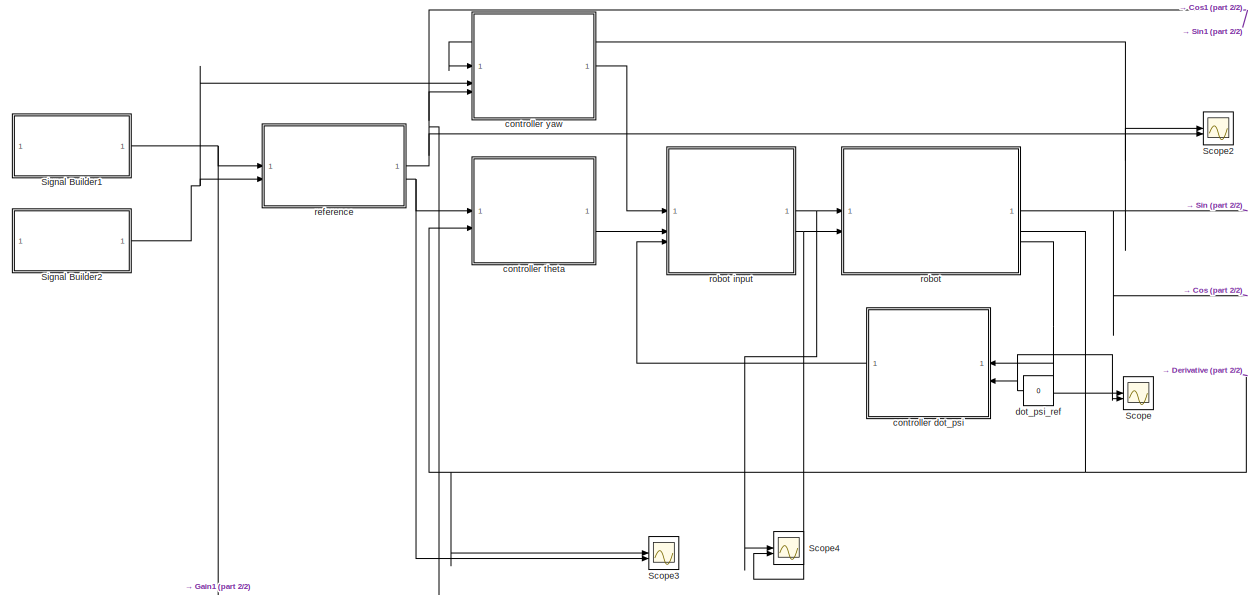
[diagram: root canvas - part 1/2, left side, full height]
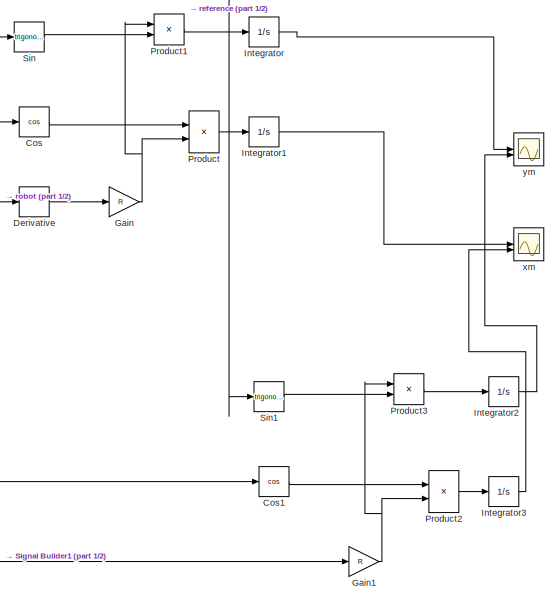
[diagram: root canvas - part 2/2, right side, full height]
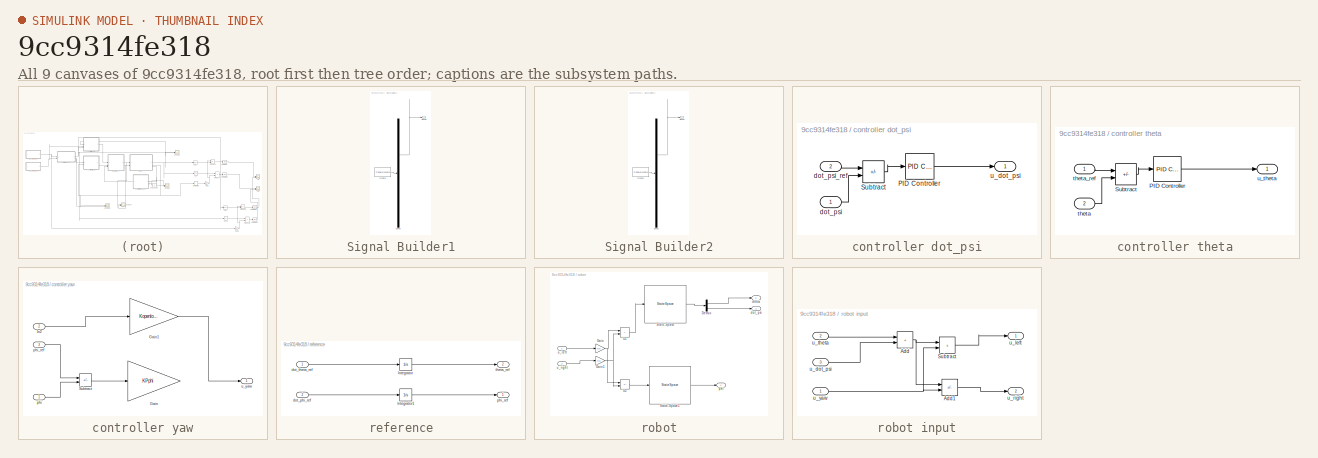
[diagram: thumbnail index - all 9 canvases of the model, root first then tree order]
MODEL slx_9cc9314fe318
KIND model
CONFIG AbsTol = auto
CONFIG EnableMultiTasking = on
CONFIG FixedStep = auto
CONFIG MaxStep = auto
CONFIG MinStep = auto
CONFIG RelTol = 1e-3
CONFIG SampleTimeConstraint = Unconstrained
CONFIG SolverName = VariableStepAuto
CONFIG StartTime = 0.0
CONFIG StopTime = 45
BLOCK [Trigonometry] Cos
  Operator = cos
BLOCK [Trigonometry] Cos1
  Operator = cos
BLOCK [Derivative] Derivative
BLOCK [Gain] Gain
  Gain = R
BLOCK [Gain] Gain1
  Gain = R
BLOCK [Integrator] Integrator
BLOCK [Integrator] Integrator1
BLOCK [Integrator] Integrator2
BLOCK [Integrator] Integrator3
BLOCK [Product] Product
BLOCK [Product] Product1
BLOCK [Product] Product2
BLOCK [Product] Product3
BLOCK [Scope] Scope
  Floating = off
  NumInputPorts = 2
  ScopeSpecificationString = Simulink.scopes.TimeScopeBlockCfg('CurrentConfiguration', extmgr.ConfigurationSet(extmgr.Configuration('Core','General UI',true),extmgr.Configuration('Core','Source UI',true),extmgr.Configuration('Sources','WiredSimulink',true,'DataLogging',true,'DataLoggingVariableName','psidot'),extmgr.Configuration('Visuals','Time Domain',true,'SerializedDisplays',{struct('MinYLimReal','-1.00000','MaxYLimReal',...<+1395ch>
BLOCK [Scope] Scope2
  Floating = off
  NumInputPorts = 2
  ScopeSpecificationString = Simulink.scopes.TimeScopeBlockCfg('CurrentConfiguration', extmgr.ConfigurationSet(extmgr.Configuration('Core','General UI',true),extmgr.Configuration('Core','Source UI',true),extmgr.Configuration('Sources','WiredSimulink',true,'DataLoggingVariableName','phidata','DataLogging',true),extmgr.Configuration('Visuals','Time Domain',true,'SerializedDisplays',{struct('MinYLimReal','-3.17996','MaxYLimReal'...<+1448ch>
BLOCK [Scope] Scope3
  Floating = off
  NumInputPorts = 2
  ScopeSpecificationString = Simulink.scopes.TimeScopeBlockCfg('CurrentConfiguration', extmgr.ConfigurationSet(extmgr.Configuration('Core','General UI',true),extmgr.Configuration('Core','Source UI',true),extmgr.Configuration('Sources','WiredSimulink',true,'DataLoggingVariableName','Theta','DataLogging',true),extmgr.Configuration('Visuals','Time Domain',true,'SerializedDisplays',{struct('MinYLimReal','-3.17996','MaxYLimReal','...<+1471ch>
BLOCK [Scope] Scope4
  Floating = off
  NumInputPorts = 2
  ScopeSpecificationString = Simulink.scopes.TimeScopeBlockCfg('CurrentConfiguration', extmgr.ConfigurationSet(extmgr.Configuration('Core','General UI',true),extmgr.Configuration('Core','Source UI',true),extmgr.Configuration('Sources','WiredSimulink',true,'DataLoggingVariableName','ScopeData1'),extmgr.Configuration('Visuals','Time Domain',true,'SerializedDisplays',{struct('MinYLimReal','-3.17996','MaxYLimReal','28.96853','YLa...<+1436ch>
BLOCK [SubSystem] Signal Builder1
  ClipboardFcn = sigbuilder_block('clipboard');
  CloseFcn = sigbuilder_block('close');
  ContinueFcn = sigbuilder_block('continue')
  CopyFcn = sigbuilder_block('copy');
  DeleteFcn = sigbuilder_block('delete');
  LoadFcn = sigbuilder_block('load');
  MaskHideContents = on
  ModelCloseFcn = sigbuilder_block('modelClose');
  NameChangeFcn = sigbuilder_block('namechange');
  OpenFcn = sigbuilder_block('open',[181.5 38.5 516 349.5 ]);
  PauseFcn = sigbuilder_block('pause')
  PreSaveFcn = sigbuilder_block('preSave');
  StartFcn = sigbuilder_block('start');
  StopFcn = sigbuilder_block('stop');
  Tag = STV Subsys
BLOCK [Demux] Signal Builder1/Demux
  DisplayOption = none
  Outputs = 1
  Tag = STV Demux
BLOCK [FromWorkspace] Signal Builder1/FromWs
  Tag = STV FromWs
  VariableName = tuvar
BLOCK [Outport] Signal Builder1/Signal 1
  Tag = STV Outport
BLOCK [SubSystem] Signal Builder2
  ClipboardFcn = sigbuilder_block('clipboard');
  CloseFcn = sigbuilder_block('close');
  ContinueFcn = sigbuilder_block('continue')
  CopyFcn = sigbuilder_block('copy');
  DeleteFcn = sigbuilder_block('delete');
  LoadFcn = sigbuilder_block('load');
  MaskHideContents = on
  ModelCloseFcn = sigbuilder_block('modelClose');
  NameChangeFcn = sigbuilder_block('namechange');
  OpenFcn = sigbuilder_block('open',[181.5 38.5 516 349.5 ]);
  PauseFcn = sigbuilder_block('pause')
  PreSaveFcn = sigbuilder_block('preSave');
  StartFcn = sigbuilder_block('start');
  StopFcn = sigbuilder_block('stop');
  Tag = STV Subsys
BLOCK [Demux] Signal Builder2/Demux
  DisplayOption = none
  Outputs = 1
  Tag = STV Demux
BLOCK [FromWorkspace] Signal Builder2/FromWs
  Tag = STV FromWs
  VariableName = tuvar
BLOCK [Outport] Signal Builder2/Signal 1
  Tag = STV Outport
BLOCK [Trigonometry] Sin
BLOCK [Trigonometry] Sin1
BLOCK [SubSystem] controller dot_psi
BLOCK [Reference] controller dot_psi/PID Controller  REF=slpidlib/PID Controller
  LibrarySourceBlock = simulink/Continuous/PID Controller
  SourceBlock = slpidlib/PID Controller
  SourceType = PID 1dof
BLOCK [Sum] controller dot_psi/Subtract
  IconShape = rectangular
  Inputs = +-
BLOCK [Inport] controller dot_psi/dot_psi 
BLOCK [Inport] controller dot_psi/dot_psi_ref
  Port = 2
BLOCK [Outport] controller dot_psi/u_dot_psi
BLOCK [SubSystem] controller theta
BLOCK [Reference] controller theta/PID Controller  REF=slpidlib/PID Controller
  LibrarySourceBlock = simulink/Continuous/PID Controller
  SourceBlock = slpidlib/PID Controller
  SourceType = PID 1dof
BLOCK [Sum] controller theta/Subtract
  IconShape = rectangular
  Inputs = +-
BLOCK [Inport] controller theta/theta 
  Port = 2
BLOCK [Inport] controller theta/theta_ref
BLOCK [Outport] controller theta/u_theta
BLOCK [SubSystem] controller yaw
BLOCK [Gain] controller yaw/Gain
  Gain = KPphi
BLOCK [Gain] controller yaw/Gain1
  Gain = Kopenloop
BLOCK [Inport] controller yaw/In2
  Port = 2
BLOCK [Sum] controller yaw/Subtract
  IconShape = rectangular
  Inputs = +-
BLOCK [Inport] controller yaw/phi
BLOCK [Inport] controller yaw/phi_ref
  Port = 3
BLOCK [Outport] controller yaw/u_yaw
BLOCK [Constant] dot_psi_ref
  Value = 0
  VectorParams1D = off
BLOCK [SubSystem] reference
BLOCK [Integrator] reference/Integrator
BLOCK [Integrator] reference/Integrator1
BLOCK [Inport] reference/dot_phi_ref 
  Port = 2
BLOCK [Inport] reference/dot_theta_ref 
BLOCK [Outport] reference/phi_ref
BLOCK [Outport] reference/theta_ref 
  Port = 2
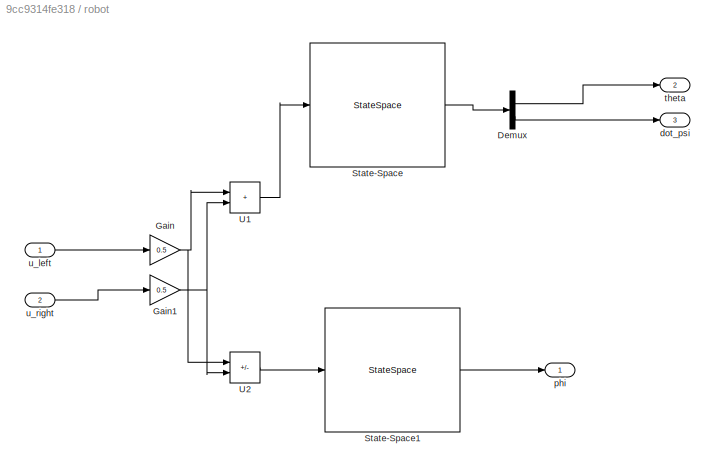
BLOCK [SubSystem] robot
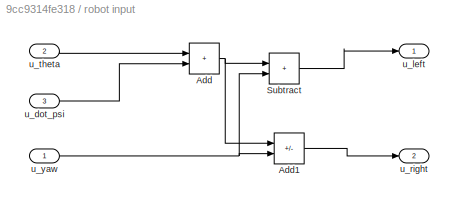
BLOCK [SubSystem] robot input
BLOCK [Sum] robot input/Add
  IconShape = rectangular
BLOCK [Sum] robot input/Add1
  IconShape = rectangular
  Inputs = +-
BLOCK [Sum] robot input/Subtract
  IconShape = rectangular
BLOCK [Inport] robot input/u_dot_psi
  Port = 3
BLOCK [Outport] robot input/u_left
BLOCK [Outport] robot input/u_right
  Port = 2
BLOCK [Inport] robot input/u_theta
  Port = 2
BLOCK [Inport] robot input/u_yaw
BLOCK [Demux] robot/Demux
  Outputs = 2
BLOCK [Gain] robot/Gain
  Gain = 0.5
BLOCK [Gain] robot/Gain1
  Gain = 0.5
BLOCK [StateSpace] robot/State-Space
  A = A1
  B = B1
  C = C1
  D = D1
  InitialCondition = 0
BLOCK [StateSpace] robot/State-Space1
  A = A2
  B = B2
  C = C2
  D = D2
  InitialCondition = 0
BLOCK [Sum] robot/U1
  IconShape = rectangular
BLOCK [Sum] robot/U2
  IconShape = rectangular
  Inputs = +-
BLOCK [Outport] robot/dot_psi
  Port = 3
BLOCK [Outport] robot/phi
BLOCK [Outport] robot/theta
  Port = 2
BLOCK [Inport] robot/u_left
BLOCK [Inport] robot/u_right
  Port = 2
BLOCK [Scope] xm
  Floating = off
  NumInputPorts = 2
  ScopeSpecificationString = Simulink.scopes.TimeScopeBlockCfg('CurrentConfiguration', extmgr.ConfigurationSet(extmgr.Configuration('Core','General UI',true),extmgr.Configuration('Core','Source UI',true),extmgr.Configuration('Sources','WiredSimulink',true,'DataLoggingVariableName','ScopeData6'),extmgr.Configuration('Visuals','Time Domain',true,'SerializedDisplays',{struct('MinYLimReal','-0.0485','MaxYLimReal','0.04463','YLabe...<+1424ch>
BLOCK [Scope] ym
  Floating = off
  NumInputPorts = 2
  ScopeSpecificationString = Simulink.scopes.TimeScopeBlockCfg('CurrentConfiguration', extmgr.ConfigurationSet(extmgr.Configuration('Core','General UI',true),extmgr.Configuration('Core','Source UI',true),extmgr.Configuration('Sources','WiredSimulink',true,'DataLoggingVariableName','ScopeData5'),extmgr.Configuration('Visuals','Time Domain',true,'SerializedDisplays',{struct('MinYLimReal','-0.06474','MaxYLimReal','0.00739','YLab...<+1427ch>
LINE Cos1:1 -> Product2:1
LINE Cos:1 -> Product:1
LINE Derivative:1 -> Gain:1
NET Gain1:1 -> Product2:2, Product3:1
NET Gain:1 -> Product1:1, Product:2
LINE Integrator1:1 -> xm:1
LINE Integrator2:1 -> ym:2
LINE Integrator3:1 -> xm:2
LINE Integrator:1 -> ym:1
LINE Product1:1 -> Integrator:1
LINE Product2:1 -> Integrator3:1
LINE Product3:1 -> Integrator2:1
LINE Product:1 -> Integrator1:1
LINE Signal Builder1/Demux:1 -> Signal Builder1/Signal 1:1
LINE Signal Builder1/FromWs:1 -> Signal Builder1/Demux:1
NET Signal Builder1:1 -> Gain1:1, reference:1
LINE Signal Builder2/Demux:1 -> Signal Builder2/Signal 1:1
LINE Signal Builder2/FromWs:1 -> Signal Builder2/Demux:1
NET Signal Builder2:1 -> controller yaw:2, reference:2
LINE Sin1:1 -> Product3:2
LINE Sin:1 -> Product1:2
LINE controller dot_psi/PID Controller:1 -> controller dot_psi/u_dot_psi:1
LINE controller dot_psi/Subtract:1 -> controller dot_psi/PID Controller:1
LINE controller dot_psi/dot_psi :1 -> controller dot_psi/Subtract:2
LINE controller dot_psi/dot_psi_ref:1 -> controller dot_psi/Subtract:1
LINE controller dot_psi:1 -> robot input:3
LINE controller theta/PID Controller:1 -> controller theta/u_theta:1
LINE controller theta/Subtract:1 -> controller theta/PID Controller:1
LINE controller theta/theta :1 -> controller theta/Subtract:2
LINE controller theta/theta_ref:1 -> controller theta/Subtract:1
LINE controller theta:1 -> robot input:2
LINE controller yaw/Gain1:1 -> controller yaw/u_yaw:1
LINE controller yaw/In2:1 -> controller yaw/Gain1:1
LINE controller yaw/Subtract:1 -> controller yaw/Gain:1
LINE controller yaw/phi:1 -> controller yaw/Subtract:2
LINE controller yaw/phi_ref:1 -> controller yaw/Subtract:1
LINE controller yaw:1 -> robot input:1
NET dot_psi_ref:1 -> Scope:2, controller dot_psi:2
LINE reference/Integrator1:1 -> reference/phi_ref:1
LINE reference/Integrator:1 -> reference/theta_ref :1
LINE reference/dot_phi_ref :1 -> reference/Integrator1:1
LINE reference/dot_theta_ref :1 -> reference/Integrator:1
NET reference:1 -> Cos1:1, Scope2:2, Sin1:1, controller yaw:3
NET reference:2 -> Scope3:2, controller theta:1
LINE robot input/Add1:1 -> robot input/u_right:1
NET robot input/Add:1 -> robot input/Add1:1, robot input/Subtract:1
LINE robot input/Subtract:1 -> robot input/u_left:1
LINE robot input/u_dot_psi:1 -> robot input/Add:2
LINE robot input/u_theta:1 -> robot input/Add:1
NET robot input/u_yaw:1 -> robot input/Add1:2, robot input/Subtract:2
NET robot input:1 -> Scope4:1, robot:1
NET robot input:2 -> Scope4:2, robot:2
LINE robot/Demux:1 -> robot/theta:1
LINE robot/Demux:2 -> robot/dot_psi:1
NET robot/Gain1:1 -> robot/U1:2, robot/U2:2
NET robot/Gain:1 -> robot/U1:1, robot/U2:1
LINE robot/State-Space1:1 -> robot/phi:1
LINE robot/State-Space:1 -> robot/Demux:1
LINE robot/U1:1 -> robot/State-Space:1
LINE robot/U2:1 -> robot/State-Space1:1
LINE robot/u_left:1 -> robot/Gain:1
LINE robot/u_right:1 -> robot/Gain1:1
NET robot:1 -> Cos:1, Scope2:1, Sin:1, controller yaw:1
NET robot:2 -> Derivative:1, Scope3:1, controller theta:2
NET robot:3 -> Scope:1, controller dot_psi:1
note: NET lines group one-source signal fan-out (src -> all destinations, sorted); 1:1 wires keep LINE
